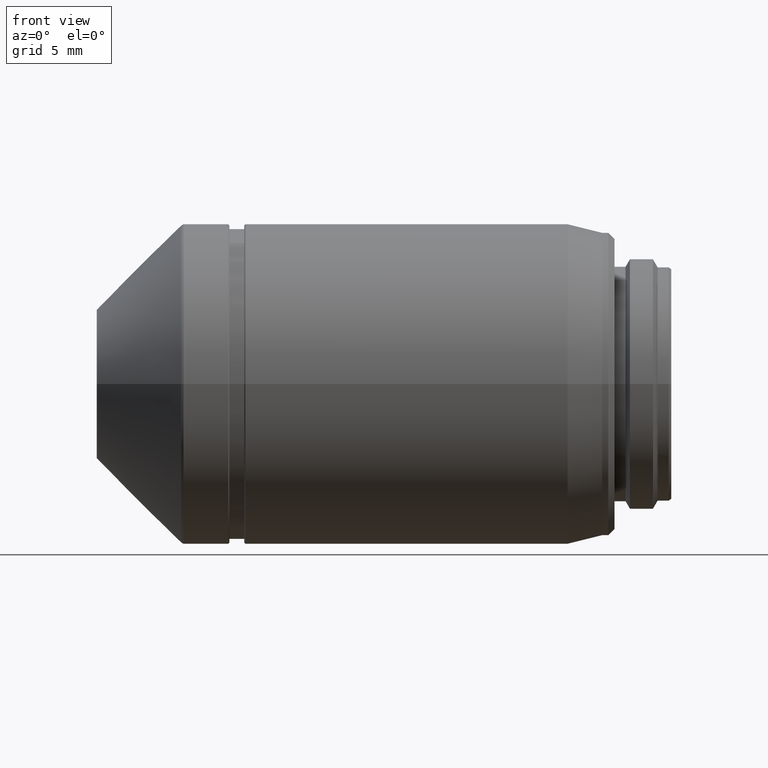
[diagram: clean part render]
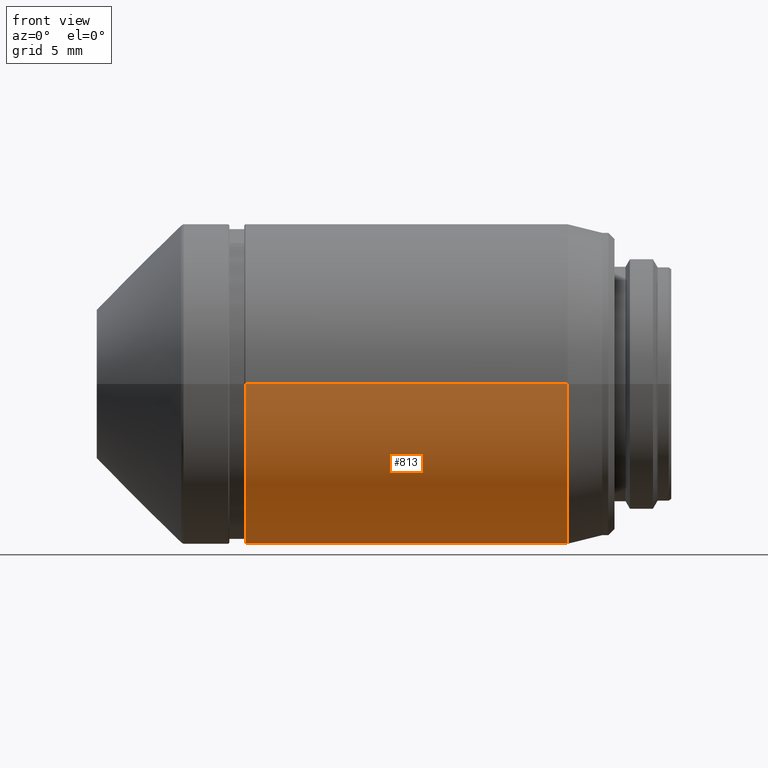
[diagram: same view with one face highlighted and labeled with its STEP entity id]
A machine part, front view. The second image highlights one B-rep face of the part: STEP entity #813.
In plain terms, the highlighted cylindrical surface (partial cylindrical patch) has radius 13 mm, axis along (1, 0, 0).
Its self-contained STEP definition (entity closure, byte-faithful):
#3 = FACE_OUTER_BOUND ( 'NONE', #678, .T. ) ;
#64 = DIRECTION ( 'NONE',  ( 1.000000000000000000, 1.860059517696599800E-16, 0.000000000000000000 ) ) ;
#68 = VERTEX_POINT ( 'NONE', #272 ) ;
#74 = ORIENTED_EDGE ( 'NONE', *, *, #656, .T. ) ;
#157 = CARTESIAN_POINT ( 'NONE',  ( 8.099999999999999645, 13.00000000000000000, -1.592040838891559884E-15 ) ) ;
#193 = CARTESIAN_POINT ( 'NONE',  ( 21.15048094716170013, -3.134110828284200127E-15, 0.000000000000000000 ) ) ;
#272 = CARTESIAN_POINT ( 'NONE',  ( 34.20096189432339884, -13.00000000000000000, -1.592040838891559884E-15 ) ) ;
#359 = VECTOR ( 'NONE', #1130, 1000.000000000000000 ) ;
#395 = VERTEX_POINT ( 'NONE', #439 ) ;
#429 = DIRECTION ( 'NONE',  ( 1.000000000000000000, 1.860059517696599800E-16, 0.000000000000000000 ) ) ;
#439 = CARTESIAN_POINT ( 'NONE',  ( 34.20096189432339884, 13.00000000000000000, 0.000000000000000000 ) ) ;
#459 = LINE ( 'NONE', #1213, #359 ) ;
#467 = DIRECTION ( 'NONE',  ( 1.000000000000000000, 1.860059517696599800E-16, 0.000000000000000000 ) ) ;
#481 = AXIS2_PLACEMENT_3D ( 'NONE', #566, #467, #854 ) ;
#501 = CIRCLE ( 'NONE', #1132, 13.00000000000000000 ) ;
#504 = AXIS2_PLACEMENT_3D ( 'NONE', #193, #1055, #1171 ) ;
#566 = CARTESIAN_POINT ( 'NONE',  ( 34.20096189432339884, -7.066436986555820323E-16, 0.000000000000000000 ) ) ;
#589 = VERTEX_POINT ( 'NONE', #157 ) ;
#640 = EDGE_CURVE ( 'NONE', #68, #395, #868, .T. ) ;
#656 = EDGE_CURVE ( 'NONE', #589, #395, #935, .T. ) ;
#661 = ORIENTED_EDGE ( 'NONE', *, *, #1040, .T. ) ;
#676 = EDGE_CURVE ( 'NONE', #814, #68, #459, .T. ) ;
#678 = EDGE_LOOP ( 'NONE', ( #661, #74, #797, #1140 ) ) ;
#698 = CYLINDRICAL_SURFACE ( 'NONE', #504, 13.00000000000000000 ) ;
#797 = ORIENTED_EDGE ( 'NONE', *, *, #640, .F. ) ;
#812 = DIRECTION ( 'NONE',  ( -1.334402673828313093E-16, 1.000000000000000000, 0.000000000000000000 ) ) ;
#813 = ADVANCED_FACE ( 'NONE', ( #3 ), #698, .T. ) ;
#814 = VERTEX_POINT ( 'NONE', #876 ) ;
#854 = DIRECTION ( 'NONE',  ( 0.000000000000000000, 1.000000000000000000, 0.000000000000000000 ) ) ;
#868 = CIRCLE ( 'NONE', #481, 13.00000000000000000 ) ;
#876 = CARTESIAN_POINT ( 'NONE',  ( 8.099999999999999645, -13.00000000000000000, 0.000000000000000000 ) ) ;
#906 = VECTOR ( 'NONE', #64, 1000.000000000000000 ) ;
#935 = LINE ( 'NONE', #1222, #906 ) ;
#1040 = EDGE_CURVE ( 'NONE', #814, #589, #501, .T. ) ;
#1055 = DIRECTION ( 'NONE',  ( 1.000000000000000000, 1.860059517696599800E-16, 0.000000000000000000 ) ) ;
#1097 = CARTESIAN_POINT ( 'NONE',  ( 8.099999999999999645, -5.561577957912819503E-15, 0.000000000000000000 ) ) ;
#1130 = DIRECTION ( 'NONE',  ( 1.000000000000000000, 1.860059517696599800E-16, 0.000000000000000000 ) ) ;
#1132 = AXIS2_PLACEMENT_3D ( 'NONE', #1097, #429, #812 ) ;
#1140 = ORIENTED_EDGE ( 'NONE', *, *, #676, .F. ) ;
#1171 = DIRECTION ( 'NONE',  ( 2.668805347656626185E-16, -1.000000000000000000, 0.000000000000000000 ) ) ;
#1213 = CARTESIAN_POINT ( 'NONE',  ( 21.15048094716170013, -13.00000000000000000, 0.000000000000000000 ) ) ;
#1222 = CARTESIAN_POINT ( 'NONE',  ( 21.15048094716170013, 13.00000000000000000, -1.592040838891559884E-15 ) ) ;